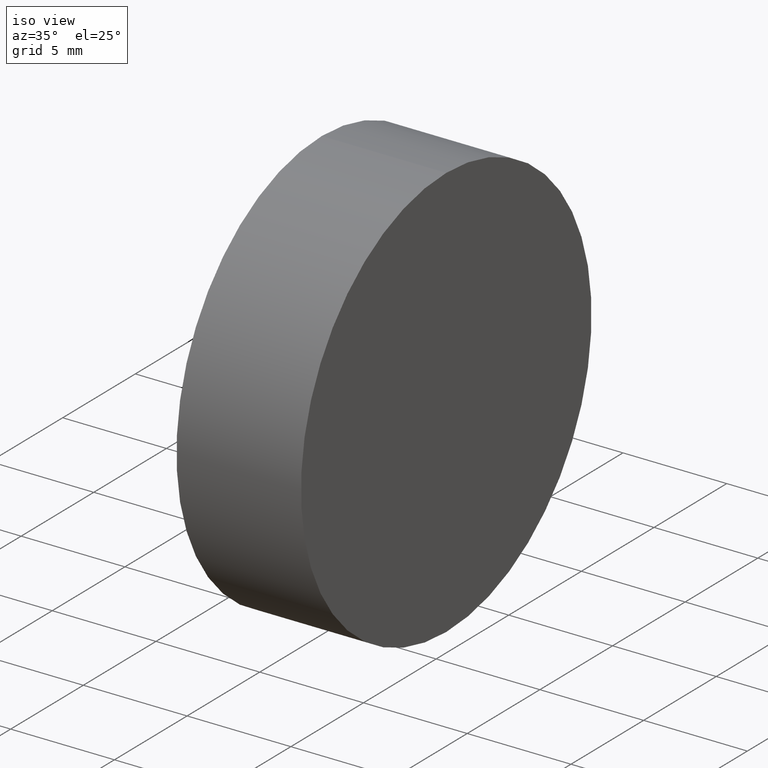
[diagram: clean part render]
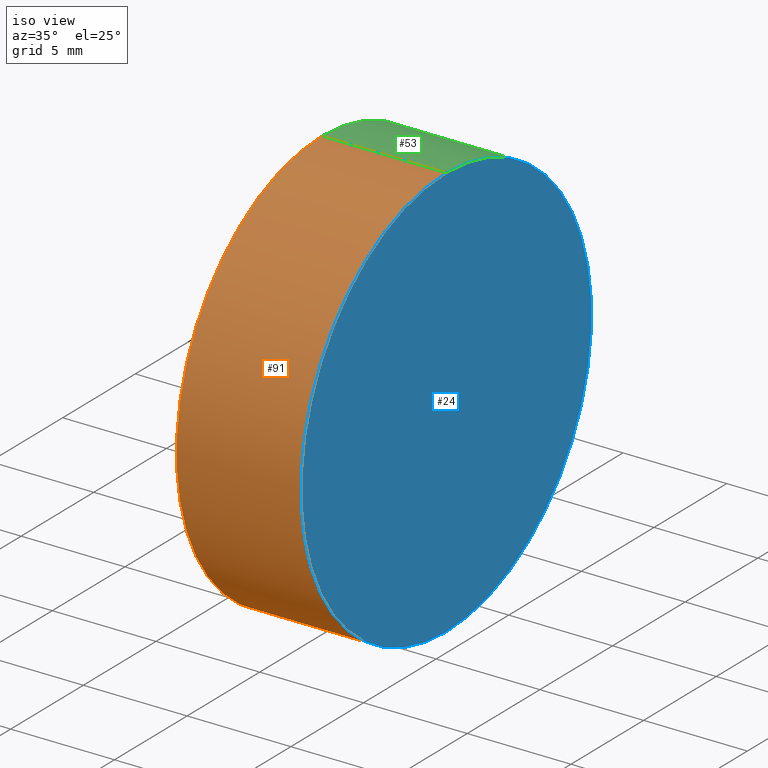
[diagram: same view with three faces highlighted in distinct colors, each labeled with its STEP entity id]
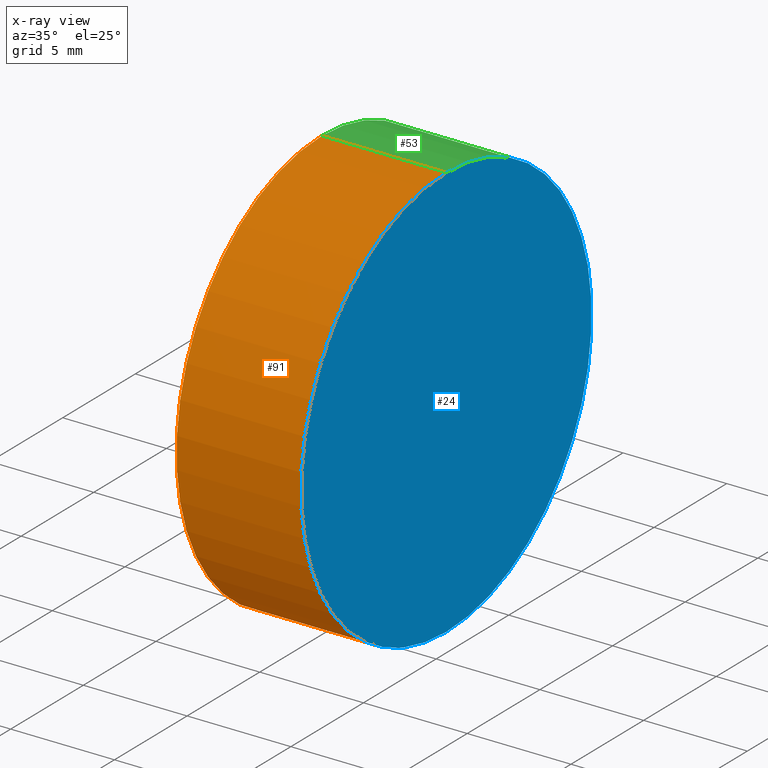
[diagram: x-ray of the same camera — body ghosted, the three highlighted faces saturated]
A machine part, iso view with three faces highlighted in distinct colors.
The next image is the same camera in x-ray (body ghosted, the three faces saturated) — at least one of them is partly hidden behind the body in this view.
Their STEP definitions:

[orange] entity #91 — the highlighted cylindrical surface (partial cylindrical patch) has radius 10 mm, axis along (-1, -0, -0).
#8 = LINE ( 'NONE', #16, #95 ) ;
#10 = CIRCLE ( 'NONE', #25, 9.999999990000000900 ) ;
#16 = CARTESIAN_POINT ( 'NONE',  ( 169.3338678257435100, 51.52878618114815600, 9.999999990000000900 ) ) ;
#18 = CARTESIAN_POINT ( 'NONE',  ( 179.4186645271068100, 51.52878618114815600, -9.999999990000000900 ) ) ;
#20 = EDGE_CURVE ( 'NONE', #113, #78, #32, .T. ) ;
#21 = FACE_OUTER_BOUND ( 'NONE', #67, .T. ) ;
#25 = AXIS2_PLACEMENT_3D ( 'NONE', #86, #35, #111 ) ;
#32 = CIRCLE ( 'NONE', #79, 9.999999990000000900 ) ;
#34 = DIRECTION ( 'NONE',  ( -1.000000000000000000, -0.0000000000000000000, -0.0000000000000000000 ) ) ;
#35 = DIRECTION ( 'NONE',  ( -1.000000000000000000, -0.0000000000000000000, -0.0000000000000000000 ) ) ;
#45 = CARTESIAN_POINT ( 'NONE',  ( 173.4186645331067800, 51.52878618114815600, 0.0000000000000000000 ) ) ;
#55 = EDGE_CURVE ( 'NONE', #137, #78, #8, .T. ) ;
#56 = DIRECTION ( 'NONE',  ( 0.0000000000000000000, 0.0000000000000000000, 1.000000000000000000 ) ) ;
#58 = CARTESIAN_POINT ( 'NONE',  ( 169.3338678257435100, 51.52878618114815600, 0.0000000000000000000 ) ) ;
#64 = ORIENTED_EDGE ( 'NONE', *, *, #115, .F. ) ;
#67 = EDGE_LOOP ( 'NONE', ( #64, #92, #131, #72 ) ) ;
#72 = ORIENTED_EDGE ( 'NONE', *, *, #20, .F. ) ;
#75 = DIRECTION ( 'NONE',  ( -1.000000000000000000, -0.0000000000000000000, -0.0000000000000000000 ) ) ;
#78 = VERTEX_POINT ( 'NONE', #104 ) ;
#79 = AXIS2_PLACEMENT_3D ( 'NONE', #45, #120, #56 ) ;
#84 = AXIS2_PLACEMENT_3D ( 'NONE', #58, #103, #139 ) ;
#86 = CARTESIAN_POINT ( 'NONE',  ( 179.4186645271068100, 51.52878618114815600, 0.0000000000000000000 ) ) ;
#87 = CARTESIAN_POINT ( 'NONE',  ( 173.4186645331067800, 51.52878618114815600, -9.999999990000000900 ) ) ;
#89 = VERTEX_POINT ( 'NONE', #18 ) ;
#91 = ADVANCED_FACE ( 'NONE', ( #21 ), #133, .T. ) ;
#92 = ORIENTED_EDGE ( 'NONE', *, *, #112, .T. ) ;
#95 = VECTOR ( 'NONE', #75, 1000.000000000000000 ) ;
#101 = VECTOR ( 'NONE', #34, 1000.000000000000000 ) ;
#103 = DIRECTION ( 'NONE',  ( -1.000000000000000000, -0.0000000000000000000, -0.0000000000000000000 ) ) ;
#104 = CARTESIAN_POINT ( 'NONE',  ( 173.4186645331067800, 51.52878618114815600, 9.999999990000000900 ) ) ;
#106 = CARTESIAN_POINT ( 'NONE',  ( 169.3338678257435100, 51.52878618114815600, -9.999999990000000900 ) ) ;
#110 = CARTESIAN_POINT ( 'NONE',  ( 179.4186645271068100, 51.52878618114815600, 9.999999990000000900 ) ) ;
#111 = DIRECTION ( 'NONE',  ( 0.0000000000000000000, 0.0000000000000000000, 1.000000000000000000 ) ) ;
#112 = EDGE_CURVE ( 'NONE', #89, #137, #10, .T. ) ;
#113 = VERTEX_POINT ( 'NONE', #87 ) ;
#115 = EDGE_CURVE ( 'NONE', #89, #113, #122, .T. ) ;
#120 = DIRECTION ( 'NONE',  ( -1.000000000000000000, -0.0000000000000000000, -0.0000000000000000000 ) ) ;
#122 = LINE ( 'NONE', #106, #101 ) ;
#131 = ORIENTED_EDGE ( 'NONE', *, *, #55, .T. ) ;
#133 = CYLINDRICAL_SURFACE ( 'NONE', #84, 9.999999990000000900 ) ;
#137 = VERTEX_POINT ( 'NONE', #110 ) ;
#139 = DIRECTION ( 'NONE',  ( 0.0000000000000000000, 0.0000000000000000000, 1.000000000000000000 ) ) ;

[blue] entity #24 — the highlighted planar face has unit normal (-1, 0, -0).
#1 = AXIS2_PLACEMENT_3D ( 'NONE', #31, #93, #44 ) ;
#7 = CIRCLE ( 'NONE', #1, 9.999999990000000900 ) ;
#10 = CIRCLE ( 'NONE', #25, 9.999999990000000900 ) ;
#18 = CARTESIAN_POINT ( 'NONE',  ( 179.4186645271068100, 51.52878618114815600, -9.999999990000000900 ) ) ;
#22 = ORIENTED_EDGE ( 'NONE', *, *, #112, .F. ) ;
#24 = ADVANCED_FACE ( 'NONE', ( #82 ), #68, .F. ) ;
#25 = AXIS2_PLACEMENT_3D ( 'NONE', #86, #35, #111 ) ;
#31 = CARTESIAN_POINT ( 'NONE',  ( 179.4186645271068100, 51.52878618114815600, 0.0000000000000000000 ) ) ;
#35 = DIRECTION ( 'NONE',  ( -1.000000000000000000, -0.0000000000000000000, -0.0000000000000000000 ) ) ;
#44 = DIRECTION ( 'NONE',  ( 0.0000000000000000000, 0.0000000000000000000, 1.000000000000000000 ) ) ;
#49 = ORIENTED_EDGE ( 'NONE', *, *, #69, .F. ) ;
#61 = DIRECTION ( 'NONE',  ( -1.000000000000000000, 0.0000000000000000000, -0.0000000000000000000 ) ) ;
#62 = DIRECTION ( 'NONE',  ( -0.0000000000000000000, 0.0000000000000000000, 1.000000000000000000 ) ) ;
#68 = PLANE ( 'NONE',  #81 ) ;
#69 = EDGE_CURVE ( 'NONE', #137, #89, #7, .T. ) ;
#81 = AXIS2_PLACEMENT_3D ( 'NONE', #109, #61, #62 ) ;
#82 = FACE_OUTER_BOUND ( 'NONE', #123, .T. ) ;
#86 = CARTESIAN_POINT ( 'NONE',  ( 179.4186645271068100, 51.52878618114815600, 0.0000000000000000000 ) ) ;
#89 = VERTEX_POINT ( 'NONE', #18 ) ;
#93 = DIRECTION ( 'NONE',  ( -1.000000000000000000, -0.0000000000000000000, -0.0000000000000000000 ) ) ;
#109 = CARTESIAN_POINT ( 'NONE',  ( 179.4186645271068100, 51.52878618114815600, 0.0000000000000000000 ) ) ;
#110 = CARTESIAN_POINT ( 'NONE',  ( 179.4186645271068100, 51.52878618114815600, 9.999999990000000900 ) ) ;
#111 = DIRECTION ( 'NONE',  ( 0.0000000000000000000, 0.0000000000000000000, 1.000000000000000000 ) ) ;
#112 = EDGE_CURVE ( 'NONE', #89, #137, #10, .T. ) ;
#123 = EDGE_LOOP ( 'NONE', ( #49, #22 ) ) ;
#137 = VERTEX_POINT ( 'NONE', #110 ) ;

[green] entity #53 — the highlighted cylindrical surface (partial cylindrical patch) has radius 10 mm, axis along (-1, -0, -0).
#1 = AXIS2_PLACEMENT_3D ( 'NONE', #31, #93, #44 ) ;
#3 = FACE_OUTER_BOUND ( 'NONE', #135, .T. ) ;
#6 = DIRECTION ( 'NONE',  ( 0.0000000000000000000, 0.0000000000000000000, 1.000000000000000000 ) ) ;
#7 = CIRCLE ( 'NONE', #1, 9.999999990000000900 ) ;
#8 = LINE ( 'NONE', #16, #95 ) ;
#13 = AXIS2_PLACEMENT_3D ( 'NONE', #83, #41, #73 ) ;
#16 = CARTESIAN_POINT ( 'NONE',  ( 169.3338678257435100, 51.52878618114815600, 9.999999990000000900 ) ) ;
#17 = ORIENTED_EDGE ( 'NONE', *, *, #115, .T. ) ;
#18 = CARTESIAN_POINT ( 'NONE',  ( 179.4186645271068100, 51.52878618114815600, -9.999999990000000900 ) ) ;
#29 = CARTESIAN_POINT ( 'NONE',  ( 169.3338678257435100, 51.52878618114815600, 0.0000000000000000000 ) ) ;
#31 = CARTESIAN_POINT ( 'NONE',  ( 179.4186645271068100, 51.52878618114815600, 0.0000000000000000000 ) ) ;
#34 = DIRECTION ( 'NONE',  ( -1.000000000000000000, -0.0000000000000000000, -0.0000000000000000000 ) ) ;
#41 = DIRECTION ( 'NONE',  ( -1.000000000000000000, -0.0000000000000000000, -0.0000000000000000000 ) ) ;
#42 = DIRECTION ( 'NONE',  ( -1.000000000000000000, -0.0000000000000000000, -0.0000000000000000000 ) ) ;
#44 = DIRECTION ( 'NONE',  ( 0.0000000000000000000, 0.0000000000000000000, 1.000000000000000000 ) ) ;
#53 = ADVANCED_FACE ( 'NONE', ( #3 ), #65, .T. ) ;
#55 = EDGE_CURVE ( 'NONE', #137, #78, #8, .T. ) ;
#65 = CYLINDRICAL_SURFACE ( 'NONE', #102, 9.999999990000000900 ) ;
#69 = EDGE_CURVE ( 'NONE', #137, #89, #7, .T. ) ;
#73 = DIRECTION ( 'NONE',  ( 0.0000000000000000000, 0.0000000000000000000, 1.000000000000000000 ) ) ;
#75 = DIRECTION ( 'NONE',  ( -1.000000000000000000, -0.0000000000000000000, -0.0000000000000000000 ) ) ;
#78 = VERTEX_POINT ( 'NONE', #104 ) ;
#83 = CARTESIAN_POINT ( 'NONE',  ( 173.4186645331067800, 51.52878618114815600, 0.0000000000000000000 ) ) ;
#87 = CARTESIAN_POINT ( 'NONE',  ( 173.4186645331067800, 51.52878618114815600, -9.999999990000000900 ) ) ;
#89 = VERTEX_POINT ( 'NONE', #18 ) ;
#93 = DIRECTION ( 'NONE',  ( -1.000000000000000000, -0.0000000000000000000, -0.0000000000000000000 ) ) ;
#95 = VECTOR ( 'NONE', #75, 1000.000000000000000 ) ;
#96 = ORIENTED_EDGE ( 'NONE', *, *, #130, .F. ) ;
#97 = ORIENTED_EDGE ( 'NONE', *, *, #69, .T. ) ;
#98 = CIRCLE ( 'NONE', #13, 9.999999990000000900 ) ;
#101 = VECTOR ( 'NONE', #34, 1000.000000000000000 ) ;
#102 = AXIS2_PLACEMENT_3D ( 'NONE', #29, #42, #6 ) ;
#104 = CARTESIAN_POINT ( 'NONE',  ( 173.4186645331067800, 51.52878618114815600, 9.999999990000000900 ) ) ;
#105 = ORIENTED_EDGE ( 'NONE', *, *, #55, .F. ) ;
#106 = CARTESIAN_POINT ( 'NONE',  ( 169.3338678257435100, 51.52878618114815600, -9.999999990000000900 ) ) ;
#110 = CARTESIAN_POINT ( 'NONE',  ( 179.4186645271068100, 51.52878618114815600, 9.999999990000000900 ) ) ;
#113 = VERTEX_POINT ( 'NONE', #87 ) ;
#115 = EDGE_CURVE ( 'NONE', #89, #113, #122, .T. ) ;
#122 = LINE ( 'NONE', #106, #101 ) ;
#130 = EDGE_CURVE ( 'NONE', #78, #113, #98, .T. ) ;
#135 = EDGE_LOOP ( 'NONE', ( #97, #17, #96, #105 ) ) ;
#137 = VERTEX_POINT ( 'NONE', #110 ) ;